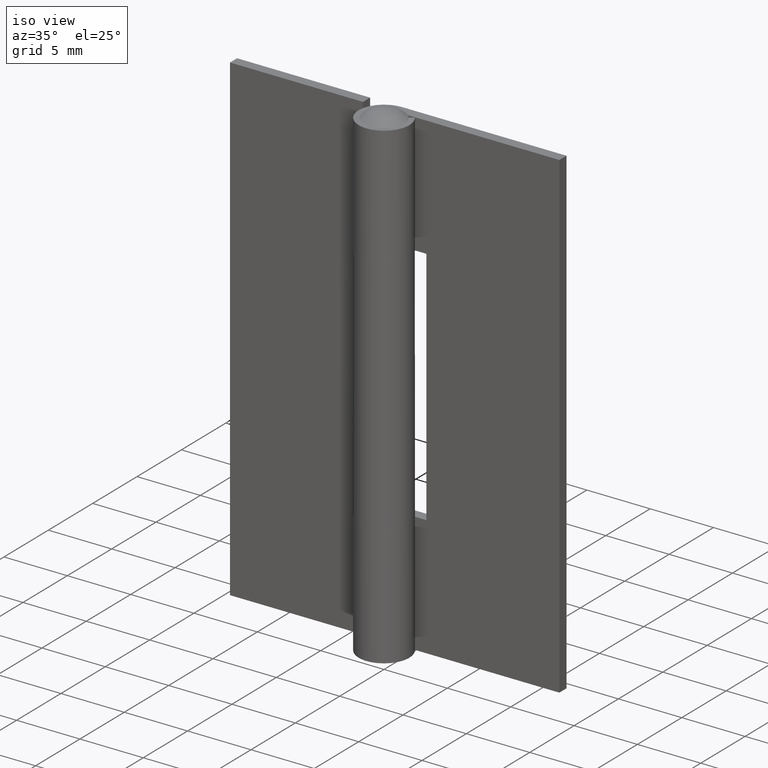
[diagram: clean part render]
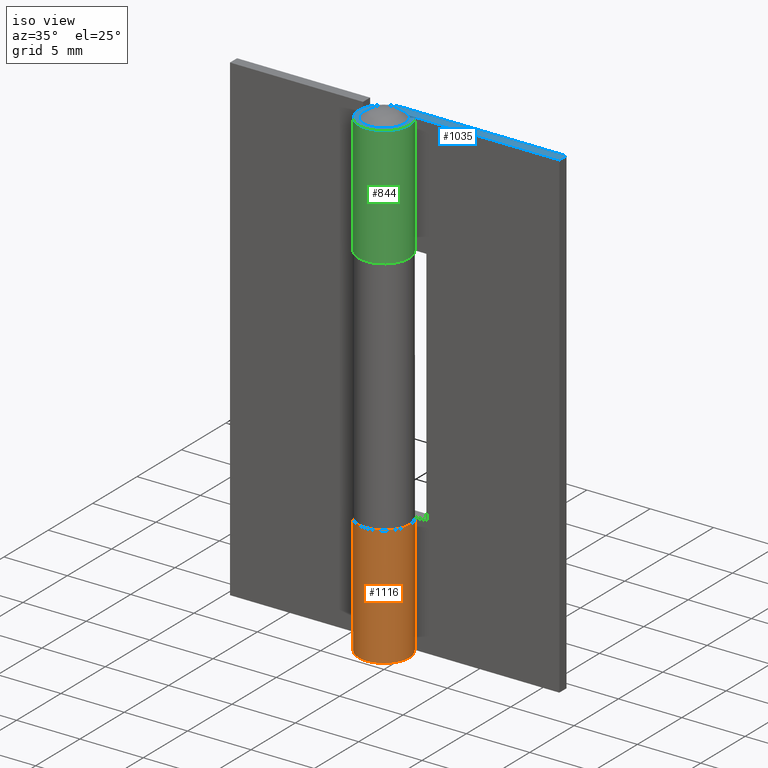
[diagram: same view with three faces highlighted in distinct colors, each labeled with its STEP entity id]
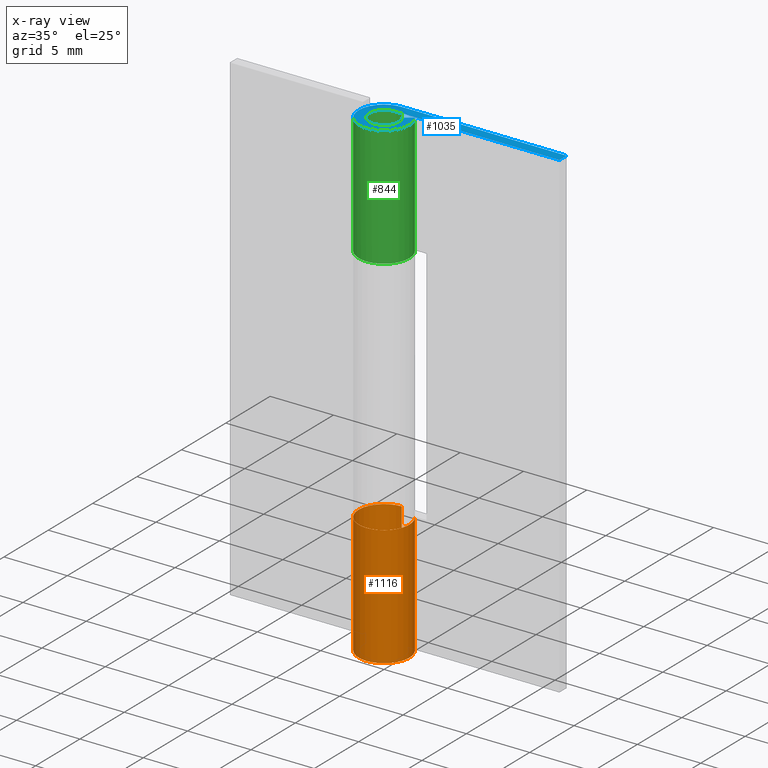
[diagram: x-ray of the same camera — body ghosted, the three highlighted faces saturated]
A machine part, iso view with three faces highlighted in distinct colors.
The next image is the same camera in x-ray (body ghosted, the three faces saturated) — at least one of them is partly hidden behind the body in this view.
Their STEP definitions:

[orange] entity #1116 — the highlighted face is a freeform B-spline surface patch.
#896=CARTESIAN_POINT('',(1.636306817195340,1.150000000000000,9.500000000000000));
#897=VERTEX_POINT('',#896);
#906=CARTESIAN_POINT('',(0.0,2.0,9.500000000000000));
#907=VERTEX_POINT('',#906);
#913=CARTESIAN_POINT('',(1.636306817195340,1.150000000000000,9.500000000000000));
#914=CARTESIAN_POINT('',(1.756008884934363,0.979872144392871,9.500000000000004));
#915=CARTESIAN_POINT('',(1.910554344957011,0.664837293065379,9.500000000000012));
#916=CARTESIAN_POINT('',(1.990858086277551,0.261453878174188,9.499999999999998));
#917=CARTESIAN_POINT('',(2.006112090058555,-0.071379126831816,9.499999999999993));
#918=CARTESIAN_POINT('',(1.975560513290086,-0.376423525887978,9.500000000000023));
#919=CARTESIAN_POINT('',(1.880727772629062,-0.703893300391789,9.499999999999984));
#920=CARTESIAN_POINT('',(1.718658741840625,-1.050211918071164,9.500000000000000));
#921=CARTESIAN_POINT('',(1.467900738620486,-1.386553338245262,9.500000000000018));
#922=CARTESIAN_POINT('',(1.156112903390003,-1.644332499113348,9.499999999999977));
#923=CARTESIAN_POINT('',(0.830428032062679,-1.830526450619629,9.500000000000030));
#924=CARTESIAN_POINT('',(0.509111246104881,-1.946993188414903,9.499999999999924));
#925=CARTESIAN_POINT('',(0.124162805834256,-2.007264356540230,9.500000000000025));
#926=CARTESIAN_POINT('',(-0.265878342988813,-1.996864701105874,9.499999999999991));
#927=CARTESIAN_POINT('',(-0.706833540189881,-1.891469862371497,9.500000000000007));
#928=CARTESIAN_POINT('',(-1.129912987630314,-1.674485815850708,9.500000000000007));
#929=CARTESIAN_POINT('',(-1.450426650189291,-1.394289448557432,9.500000000000012));
#930=CARTESIAN_POINT('',(-1.703629440127218,-1.071580900188697,9.499999999999737));
#931=CARTESIAN_POINT('',(-1.872198728112769,-0.742094150795979,9.500000000000798));
#932=CARTESIAN_POINT('',(-1.985420865322815,-0.333042069131343,9.499999999998742));
#933=CARTESIAN_POINT('',(-2.018327897334283,0.119407243509627,9.500000000001698));
#934=CARTESIAN_POINT('',(-1.935786358803601,0.566987231397522,9.499999999999227));
#935=CARTESIAN_POINT('',(-1.770874736182825,0.950493089115565,9.500000000000332));
#936=CARTESIAN_POINT('',(-1.569467497756521,1.259580264631503,9.499999999999803));
#937=CARTESIAN_POINT('',(-1.263767621649794,1.574931104122334,9.500000000000112));
#938=CARTESIAN_POINT('',(-0.920276981618766,1.791056466083651,9.499999999999966));
#939=CARTESIAN_POINT('',(-0.485294457268893,1.956749631720381,9.500000000000009));
#940=CARTESIAN_POINT('',(-0.201084941194860,2.000104808662657,9.499999999999991));
#941=CARTESIAN_POINT('',(0.0,2.0,9.500000000000000));
#942=B_SPLINE_CURVE_WITH_KNOTS('',3,(#913,#914,#915,#916,#917,#918,#919,#920,#921,#922,#923,#924,#925,#926,#927,#928,#929,#930,#931,#932,#933,#934,#935,#936,#937,#938,#939,#940,#941),.UNSPECIFIED.,.F.,.U.,(4,1,1,1,1,1,1,1,1,1,1,1,1,1,1,1,1,1,1,1,1,1,1,1,1,1,4),(0.000000210226116,0.624022316520911,1.040037869038498,1.227249017834950,1.622470047931421,1.955286493360896,2.246496028921245,2.766509364288172,3.203315907801962,3.452935980395394,3.889758910883211,4.222574795236167,4.617800433002753,5.054608475705686,5.574609134241277,6.032238876461376,6.323456095783030,6.801878988401327,7.134696426144021,7.592328976127439,8.153925732515507,8.486729500934771,8.840355528582556,9.256376392918551,9.797204703199304,10.046822779772610,10.650034254418539),.UNSPECIFIED.);
#943=EDGE_CURVE('',#897,#907,#942,.T.);
#953=CARTESIAN_POINT('',(1.636306817195340,1.150000000000000,0.0));
#954=VERTEX_POINT('',#953);
#955=CARTESIAN_POINT('',(0.0,2.0,0.0));
#956=VERTEX_POINT('',#955);
#957=CARTESIAN_POINT('',(1.636306817195340,1.150000000000000,0.0));
#958=CARTESIAN_POINT('',(1.700096495941035,1.059241438918328,0.0));
#959=CARTESIAN_POINT('',(1.837147125977620,0.825045742376349,0.0));
#960=CARTESIAN_POINT('',(1.969347598373278,0.434820267096743,0.0));
#961=CARTESIAN_POINT('',(2.017354614799587,-0.029794442713170,0.0));
#962=CARTESIAN_POINT('',(1.964749649596711,-0.445739391664837,0.0));
#963=CARTESIAN_POINT('',(1.827930053262924,-0.840160638022764,0.0));
#964=CARTESIAN_POINT('',(1.654426195223048,-1.142456440217352,0.0));
#965=CARTESIAN_POINT('',(1.408737787143811,-1.435430122834743,0.0));
#966=CARTESIAN_POINT('',(1.156118516664829,-1.644337624912891,0.0));
#967=CARTESIAN_POINT('',(0.860578764304065,-1.813264243797484,0.0));
#968=CARTESIAN_POINT('',(0.510809701036154,-1.950499982042517,0.0));
#969=CARTESIAN_POINT('',(0.096044351410973,-2.015449348466746,0.0));
#970=CARTESIAN_POINT('',(-0.327624432447050,-1.984202899455550,0.0));
#971=CARTESIAN_POINT('',(-0.704769122434179,-1.885707518997635,0.0));
#972=CARTESIAN_POINT('',(-1.106150425979081,-1.690332245882356,0.0));
#973=CARTESIAN_POINT('',(-1.433291299286645,-1.416192586484974,0.0));
#974=CARTESIAN_POINT('',(-1.660680349381688,-1.126258725225003,0.0));
#975=CARTESIAN_POINT('',(-1.845312629289105,-0.807546937824949,0.0));
#976=CARTESIAN_POINT('',(-1.980423500369255,-0.402664226961040,0.0));
#977=CARTESIAN_POINT('',(-2.012205191845825,0.035880800389804,0.0));
#978=CARTESIAN_POINT('',(-1.965580868688757,0.422540205209935,0.0));
#979=CARTESIAN_POINT('',(-1.843395425765189,0.822336552921882,0.0));
#980=CARTESIAN_POINT('',(-1.637976636656734,1.172321711304056,0.0));
#981=CARTESIAN_POINT('',(-1.377369186373906,1.461365854428041,0.0));
#982=CARTESIAN_POINT('',(-1.090813212182049,1.693723554313967,0.0));
#983=CARTESIAN_POINT('',(-0.724075926069582,1.881509124367593,0.0));
#984=CARTESIAN_POINT('',(-0.339739580224544,1.981578780576248,0.0));
#985=CARTESIAN_POINT('',(-0.104000543263394,2.000003397439669,0.0));
#986=CARTESIAN_POINT('',(0.0,2.0,0.0));
#987=B_SPLINE_CURVE_WITH_KNOTS('',3,(#957,#958,#959,#960,#961,#962,#963,#964,#965,#966,#967,#968,#969,#970,#971,#972,#973,#974,#975,#976,#977,#978,#979,#980,#981,#982,#983,#984,#985,#986),.UNSPECIFIED.,.F.,.U.,(4,1,1,1,1,1,1,1,1,1,1,1,1,1,1,1,1,1,1,1,1,1,1,1,1,1,1,4),(0.000000210226116,0.332803749775628,0.811228847014601,1.227249017834950,1.726479115180176,2.059296906811063,2.475323945904686,2.766509364288172,3.203315907801962,3.452935980395394,3.785753273664030,4.326583096262959,4.700992997388723,5.054608475705686,5.491417456150305,6.032238876461376,6.323456095783030,6.593868116038352,7.134696426144021,7.592328976127439,7.904345768201862,8.299529928883237,8.840355528582556,9.110767061978612,9.464387265330631,9.942813078190484,10.338030302680290,10.650034254418539),.UNSPECIFIED.);
#988=EDGE_CURVE('',#954,#956,#987,.T.);
#1059=CARTESIAN_POINT('',(1.636306817195340,1.150000000000000,9.500000000000000));
#1060=CARTESIAN_POINT('',(1.636306817195340,1.150000000000000,0.0));
#1061=QUASI_UNIFORM_CURVE('',1,(#1059,#1060),.UNSPECIFIED.,.F.,.U.);
#1062=EDGE_CURVE('',#897,#954,#1061,.T.);
#1073=CARTESIAN_POINT('',(0.0,2.0,9.500000000000000));
#1074=CARTESIAN_POINT('',(0.0,2.0,0.0));
#1075=QUASI_UNIFORM_CURVE('',1,(#1073,#1074),.UNSPECIFIED.,.F.,.U.);
#1076=EDGE_CURVE('',#907,#956,#1075,.T.);
#1088=CARTESIAN_POINT('',(0.083764134997604,1.998245122523257,9.737500000000003));
#1089=CARTESIAN_POINT('',(0.083764134997604,1.998245122523257,-0.243437500000001));
#1090=CARTESIAN_POINT('',(-2.473872988646710,2.105458326191331,9.737500000000003));
#1091=CARTESIAN_POINT('',(-2.473872988646710,2.105458326191331,-0.243437500000001));
#1092=CARTESIAN_POINT('',(-1.959153080758086,-0.402143265710271,9.737500000000003));
#1093=CARTESIAN_POINT('',(-1.959153080758086,-0.402143265710271,-0.243437500000001));
#1094=CARTESIAN_POINT('',(-1.444433172869462,-2.909744857611874,9.737500000000003));
#1095=CARTESIAN_POINT('',(-1.444433172869462,-2.909744857611874,-0.243437500000001));
#1096=CARTESIAN_POINT('',(0.864159919136246,-1.803670600236788,9.737500000000003));
#1097=CARTESIAN_POINT('',(0.864159919136246,-1.803670600236788,-0.243437500000001));
#1098=CARTESIAN_POINT('',(3.172753011141954,-0.697596342861702,9.737500000000003));
#1099=CARTESIAN_POINT('',(3.172753011141954,-0.697596342861702,-0.243437500000001));
#1100=CARTESIAN_POINT('',(1.541034669280693,1.274838087003549,9.737500000000003));
#1101=CARTESIAN_POINT('',(1.541034669280693,1.274838087003549,-0.243437500000001));
#1109=(BOUNDED_SURFACE()B_SPLINE_SURFACE(1,2,((#1088,#1090,#1092,#1094,#1096,#1098,#1100),(#1089,#1091,#1093,#1095,#1097,#1099,#1101)),.UNSPECIFIED.,.F.,.F.,.U.)B_SPLINE_SURFACE_WITH_KNOTS((2,2),(3,2,2,3),(0.0,9.980937500000003),(0.0,3.901860708526890,7.803721417053779,11.705582125580669),.UNSPECIFIED.)GEOMETRIC_REPRESENTATION_ITEM()RATIONAL_B_SPLINE_SURFACE(((1.0,0.615661475325658,1.0,0.615661475325658,1.0,0.615661475325658,1.0),(1.0,0.615661475325658,1.0,0.615661475325658,1.0,0.615661475325658,1.0)))REPRESENTATION_ITEM('')SURFACE());
#1110=ORIENTED_EDGE('',*,*,#1062,.F.);
#1111=ORIENTED_EDGE('',*,*,#943,.T.);
#1112=ORIENTED_EDGE('',*,*,#1076,.T.);
#1113=ORIENTED_EDGE('',*,*,#988,.F.);
#1114=EDGE_LOOP('',(#1110,#1111,#1112,#1113));
#1115=FACE_OUTER_BOUND('',#1114,.T.);
#1116=ADVANCED_FACE('',(#1115),#1109,.T.);

[blue] entity #1035 — the highlighted face is a freeform B-spline surface patch.
#468=CARTESIAN_POINT('',(1.636306817195340,1.150000000000000,38.0));
#469=VERTEX_POINT('',#468);
#484=CARTESIAN_POINT('',(0.981784090317198,0.690000000000000,38.0));
#485=VERTEX_POINT('',#484);
#491=CARTESIAN_POINT('',(0.981784090317198,0.690000000000000,38.0));
#492=CARTESIAN_POINT('',(1.636306817195340,1.150000000000000,38.0));
#493=QUASI_UNIFORM_CURVE('',1,(#491,#492),.UNSPECIFIED.,.F.,.U.);
#494=EDGE_CURVE('',#485,#469,#493,.T.);
#552=CARTESIAN_POINT('',(0.0,1.200000000000000,38.0));
#553=VERTEX_POINT('',#552);
#559=CARTESIAN_POINT('',(0.981784090317198,0.690000000000000,38.0));
#560=CARTESIAN_POINT('',(1.044004668965502,0.601525661380462,37.999999999999957));
#561=CARTESIAN_POINT('',(1.124961775016335,0.444895001007890,38.000000000000028));
#562=CARTESIAN_POINT('',(1.201991416209261,0.154345411296749,37.999999999999979));
#563=CARTESIAN_POINT('',(1.207661619393586,-0.131940006800351,37.999999999999979));
#564=CARTESIAN_POINT('',(1.136973817264248,-0.407795825027988,38.000000000000092));
#565=CARTESIAN_POINT('',(1.028429475397342,-0.633527098972543,37.999999999999837));
#566=CARTESIAN_POINT('',(0.892342140941245,-0.814097645726894,38.000000000000327));
#567=CARTESIAN_POINT('',(0.705251181588300,-0.980630690494813,37.999999999999872));
#568=CARTESIAN_POINT('',(0.495675667026628,-1.103371146909065,38.000000000000163));
#569=CARTESIAN_POINT('',(0.264727442050229,-1.177670466823438,37.999999999999730));
#570=CARTESIAN_POINT('',(0.049318442047427,-1.204542912962269,38.000000000000107));
#571=CARTESIAN_POINT('',(-0.150887136314372,-1.196069223048900,37.999999999999929));
#572=CARTESIAN_POINT('',(-0.387765232191711,-1.145932067541939,37.999999999999673));
#573=CARTESIAN_POINT('',(-0.609384222833013,-1.045080192148450,38.000000000000092));
#574=CARTESIAN_POINT('',(-0.809441255564708,-0.894366842569921,37.999999999999787));
#575=CARTESIAN_POINT('',(-0.963007372232430,-0.729049816636842,38.000000000000213));
#576=CARTESIAN_POINT('',(-1.076852349377966,-0.543718305465461,37.999999999999950));
#577=CARTESIAN_POINT('',(-1.156108329586717,-0.341807562556870,37.999999999999851));
#578=CARTESIAN_POINT('',(-1.202646412347747,-0.121018042414520,38.000000000000902));
#579=CARTESIAN_POINT('',(-1.202554240715058,0.146970963478039,37.999999999997193));
#580=CARTESIAN_POINT('',(-1.126999723373620,0.456531706941307,38.000000000001918));
#581=CARTESIAN_POINT('',(-0.972073553412274,0.726886922619305,37.999999999999233));
#582=CARTESIAN_POINT('',(-0.771917338309359,0.928988337147602,38.000000000000142));
#583=CARTESIAN_POINT('',(-0.591709454337305,1.050377565527797,37.999999999999993));
#584=CARTESIAN_POINT('',(-0.341066410141187,1.164271033140950,38.000000000000007));
#585=CARTESIAN_POINT('',(-0.141463498319693,1.200119165661440,37.999999999999993));
#586=CARTESIAN_POINT('',(0.0,1.200000000000000,38.0));
#587=B_SPLINE_CURVE_WITH_KNOTS('',3,(#559,#560,#561,#562,#563,#564,#565,#566,#567,#568,#569,#570,#571,#572,#573,#574,#575,#576,#577,#578,#579,#580,#581,#582,#583,#584,#585,#586),.UNSPECIFIED.,.F.,.U.,(4,1,1,1,1,1,1,1,1,1,1,1,1,1,1,1,1,1,1,1,1,1,1,1,1,4),(0.000000070797832,0.324481364322542,0.524179711868340,0.898613473269622,1.173194369905333,1.372894546844476,1.647442294649126,1.847125509221566,2.121715068530386,2.371329192011988,2.571024547467418,2.770712707497325,2.970418905698261,3.294888434370189,3.494576259775921,3.719233360261750,3.968855645177936,4.143589663457602,4.368246197011444,4.642828387180725,4.942332661589371,5.316759770918440,5.566382055741372,5.791034932759215,5.965772607209484,6.390106934469373),.UNSPECIFIED.);
#588=EDGE_CURVE('',#485,#553,#587,.T.);
#724=CARTESIAN_POINT('',(13.0,1.200001000000014,38.0));
#725=VERTEX_POINT('',#724);
#731=CARTESIAN_POINT('',(13.0,1.200001000000014,38.0));
#732=CARTESIAN_POINT('',(0.0,1.200000000000000,38.0));
#733=QUASI_UNIFORM_CURVE('',1,(#731,#732),.UNSPECIFIED.,.F.,.U.);
#734=EDGE_CURVE('',#725,#553,#733,.T.);
#767=CARTESIAN_POINT('',(0.0,2.0,38.0));
#768=VERTEX_POINT('',#767);
#810=CARTESIAN_POINT('',(1.636306817195340,1.150000000000000,38.0));
#811=CARTESIAN_POINT('',(1.716056840392011,1.036560598322733,38.0));
#812=CARTESIAN_POINT('',(1.831434125490863,0.829529974258678,38.000000000000092));
#813=CARTESIAN_POINT('',(1.969636024041384,0.428594537183174,37.999999999999950));
#814=CARTESIAN_POINT('',(2.017680377468229,0.025334451391165,37.999999999999922));
#815=CARTESIAN_POINT('',(1.967863383221916,-0.424389447097773,37.999999999999957));
#816=CARTESIAN_POINT('',(1.847407849438768,-0.803279214550075,38.000000000000007));
#817=CARTESIAN_POINT('',(1.644631588221875,-1.160859522766591,38.000000000000092));
#818=CARTESIAN_POINT('',(1.371054360176753,-1.476960789600504,37.999999999999460));
#819=CARTESIAN_POINT('',(1.052969671425823,-1.715844916740484,38.000000000001513));
#820=CARTESIAN_POINT('',(0.714076366392323,-1.878078096976476,37.999999999997179));
#821=CARTESIAN_POINT('',(0.353007214872395,-1.981979213068820,38.000000000001293));
#822=CARTESIAN_POINT('',(-0.022579511039090,-2.013046924277804,37.999999999999631));
#823=CARTESIAN_POINT('',(-0.444204756462006,-1.964302937254552,38.000000000000092));
#824=CARTESIAN_POINT('',(-0.828929941168044,-1.837716812372567,38.000000000000121));
#825=CARTESIAN_POINT('',(-1.236222889740699,-1.595637298010944,37.999999999999183));
#826=CARTESIAN_POINT('',(-1.562628831784600,-1.278943515649125,38.000000000002373));
#827=CARTESIAN_POINT('',(-1.803795207174576,-0.895305272440531,37.999999999995318));
#828=CARTESIAN_POINT('',(-1.933340710347278,-0.549495796170242,38.000000000005812));
#829=CARTESIAN_POINT('',(-2.004392057668502,-0.173782292701816,37.999999999998359));
#830=CARTESIAN_POINT('',(-2.004274875628608,0.168174462554007,38.000000000000597));
#831=CARTESIAN_POINT('',(-1.931181728147948,0.564561683505968,38.000000000000632));
#832=CARTESIAN_POINT('',(-1.787433817507581,0.935730627422654,37.999999999999822));
#833=CARTESIAN_POINT('',(-1.512399451395502,1.339175769092397,37.999999999999979));
#834=CARTESIAN_POINT('',(-1.183354131407262,1.632516804872506,38.000000000000021));
#835=CARTESIAN_POINT('',(-0.855325757374767,1.815743697879805,37.999999999999993));
#836=CARTESIAN_POINT('',(-0.485296150903669,1.956752297403114,38.000000000000050));
#837=CARTESIAN_POINT('',(-0.201086066667683,2.000106961801835,37.999999999999993));
#838=CARTESIAN_POINT('',(0.0,2.0,38.0));
#839=B_SPLINE_CURVE_WITH_KNOTS('',3,(#810,#811,#812,#813,#814,#815,#816,#817,#818,#819,#820,#821,#822,#823,#824,#825,#826,#827,#828,#829,#830,#831,#832,#833,#834,#835,#836,#837,#838),.UNSPECIFIED.,.F.,.U.,(4,1,1,1,1,1,1,1,1,1,1,1,1,1,1,1,1,1,1,1,1,1,1,1,1,1,4),(0.000000210226114,0.415998202734064,0.707217848917788,1.268851320092519,1.622470047931421,2.059296906811062,2.454509818019345,2.849694740728886,3.307326115060344,3.640144730540145,3.972962787602241,4.430590943353109,4.763407380662631,5.241837242629075,5.637021651609744,6.177847251527309,6.593868116038352,6.989087581993664,7.280304801097817,7.737934543407389,8.008304321780635,8.486729500934771,8.923555663740613,9.464387265330631,9.797204703199304,10.046822779772610,10.650034254418539),.UNSPECIFIED.);
#840=EDGE_CURVE('',#469,#768,#839,.T.);
#1012=CARTESIAN_POINT('',(-2.749228759156944,-2.199795509127606,38.0));
#1013=CARTESIAN_POINT('',(13.749249364118381,-2.199795509127606,38.0));
#1014=CARTESIAN_POINT('',(-2.749228759156944,2.199799886185819,38.0));
#1015=CARTESIAN_POINT('',(13.749249364118381,2.199799886185819,38.0));
#1016=B_SPLINE_SURFACE_WITH_KNOTS('',1,1,((#1012,#1014),(#1013,#1015)),.UNSPECIFIED.,.F.,.F.,.U.,(2,2),(2,2),(0.0,16.498478123275319),(0.0,4.399595395313424),.UNSPECIFIED.);
#1017=ORIENTED_EDGE('',*,*,#840,.F.);
#1018=ORIENTED_EDGE('',*,*,#494,.F.);
#1019=ORIENTED_EDGE('',*,*,#588,.T.);
#1020=ORIENTED_EDGE('',*,*,#734,.F.);
#1021=CARTESIAN_POINT('',(13.0,2.0,38.0));
#1022=VERTEX_POINT('',#1021);
#1023=CARTESIAN_POINT('',(13.0,2.0,38.0));
#1024=CARTESIAN_POINT('',(13.0,1.200001000000014,38.0));
#1025=QUASI_UNIFORM_CURVE('',1,(#1023,#1024),.UNSPECIFIED.,.F.,.U.);
#1026=EDGE_CURVE('',#1022,#725,#1025,.T.);
#1027=ORIENTED_EDGE('',*,*,#1026,.F.);
#1028=CARTESIAN_POINT('',(0.0,2.0,38.0));
#1029=CARTESIAN_POINT('',(13.0,2.0,38.0));
#1030=QUASI_UNIFORM_CURVE('',1,(#1028,#1029),.UNSPECIFIED.,.F.,.U.);
#1031=EDGE_CURVE('',#768,#1022,#1030,.T.);
#1032=ORIENTED_EDGE('',*,*,#1031,.F.);
#1033=EDGE_LOOP('',(#1017,#1018,#1019,#1020,#1027,#1032));
#1034=FACE_OUTER_BOUND('',#1033,.T.);
#1035=ADVANCED_FACE('',(#1034),#1016,.T.);

[green] entity #844 — the highlighted face is a freeform B-spline surface patch.
#468=CARTESIAN_POINT('',(1.636306817195340,1.150000000000000,38.0));
#469=VERTEX_POINT('',#468);
#470=CARTESIAN_POINT('',(1.636306817195340,1.150000000000000,28.500000000000000));
#471=VERTEX_POINT('',#470);
#472=CARTESIAN_POINT('',(1.636306817195340,1.150000000000000,38.0));
#473=CARTESIAN_POINT('',(1.636306817195340,1.150000000000000,28.500000000000000));
#474=QUASI_UNIFORM_CURVE('',1,(#472,#473),.UNSPECIFIED.,.F.,.U.);
#475=EDGE_CURVE('',#469,#471,#474,.T.);
#745=CARTESIAN_POINT('',(0.017453070996746,1.999923846128314,38.237499999999997));
#746=CARTESIAN_POINT('',(0.017453070996746,1.999923846128314,28.256562499999990));
#747=CARTESIAN_POINT('',(-2.496795788303258,2.021865363516489,38.237500000000004));
#748=CARTESIAN_POINT('',(-2.496795788303258,2.021865363516489,28.256562500000001));
#749=CARTESIAN_POINT('',(-1.952592014239866,-0.432879227876235,38.237499999999997));
#750=CARTESIAN_POINT('',(-1.952592014239866,-0.432879227876235,28.256562499999990));
#751=CARTESIAN_POINT('',(-1.408388240176473,-2.887623819268958,38.237500000000004));
#752=CARTESIAN_POINT('',(-1.408388240176473,-2.887623819268958,28.256562500000001));
#753=CARTESIAN_POINT('',(0.861022193616590,-1.805170568699748,38.237499999999997));
#754=CARTESIAN_POINT('',(0.861022193616590,-1.805170568699748,28.256562499999990));
#755=CARTESIAN_POINT('',(3.130432627409653,-0.722717318130538,38.237500000000004));
#756=CARTESIAN_POINT('',(3.130432627409653,-0.722717318130538,28.256562500000001));
#757=CARTESIAN_POINT('',(1.565216313704827,1.245029273275210,38.237499999999997));
#758=CARTESIAN_POINT('',(1.565216313704827,1.245029273275210,28.256562499999990));
#766=(BOUNDED_SURFACE()B_SPLINE_SURFACE(1,2,((#745,#747,#749,#751,#753,#755,#757),(#746,#748,#750,#752,#754,#756,#758)),.UNSPECIFIED.,.F.,.F.,.U.)B_SPLINE_SURFACE_WITH_KNOTS((2,2),(3,2,2,3),(0.0,9.980937500000010),(0.0,3.858741926540562,7.717483853081124,11.576225779621691),.UNSPECIFIED.)GEOMETRIC_REPRESENTATION_ITEM()RATIONAL_B_SPLINE_SURFACE(((1.0,0.622514636637620,1.0,0.622514636637620,1.0,0.622514636637620,1.0),(1.0,0.622514636637620,1.0,0.622514636637620,1.0,0.622514636637620,1.0)))REPRESENTATION_ITEM('')SURFACE());
#767=CARTESIAN_POINT('',(0.0,2.0,38.0));
#768=VERTEX_POINT('',#767);
#769=CARTESIAN_POINT('',(0.0,2.0,28.500000000000000));
#770=VERTEX_POINT('',#769);
#771=CARTESIAN_POINT('',(0.0,2.0,38.0));
#772=CARTESIAN_POINT('',(0.0,2.0,28.500000000000000));
#773=QUASI_UNIFORM_CURVE('',1,(#771,#772),.UNSPECIFIED.,.F.,.U.);
#774=EDGE_CURVE('',#768,#770,#773,.T.);
#775=ORIENTED_EDGE('',*,*,#774,.T.);
#776=CARTESIAN_POINT('',(0.0,2.0,28.500000000000000));
#777=CARTESIAN_POINT('',(-0.110933658729646,2.000006274438027,28.500000000000021));
#778=CARTESIAN_POINT('',(-0.360541378158908,1.979192476253945,28.499999999999961));
#779=CARTESIAN_POINT('',(-0.696427260289628,1.886089953460193,28.499999999999979));
#780=CARTESIAN_POINT('',(-1.028652226108026,1.726739436536892,28.499999999999940));
#781=CARTESIAN_POINT('',(-1.335148685973381,1.508504113229255,28.499999999999950));
#782=CARTESIAN_POINT('',(-1.585484818352126,1.236486543201834,28.500000000000011));
#783=CARTESIAN_POINT('',(-1.798310540984809,0.902383582451446,28.500000000000011));
#784=CARTESIAN_POINT('',(-1.945941300885075,0.532740328213716,28.499999999999979));
#785=CARTESIAN_POINT('',(-2.012091440625781,0.098318087361424,28.500000000000011));
#786=CARTESIAN_POINT('',(-1.989899899108703,-0.291223175069980,28.500000000000000));
#787=CARTESIAN_POINT('',(-1.897724221386617,-0.669801193685860,28.500000000000028));
#788=CARTESIAN_POINT('',(-1.749016387793141,-0.992951580945404,28.499999999999961));
#789=CARTESIAN_POINT('',(-1.520937416004545,-1.317013145698199,28.500000000000021));
#790=CARTESIAN_POINT('',(-1.235451271198049,-1.594028847765174,28.499999999999979));
#791=CARTESIAN_POINT('',(-0.860071607138657,-1.822466577737805,28.500000000000039));
#792=CARTESIAN_POINT('',(-0.478024392078350,-1.954800304070979,28.499999999999861));
#793=CARTESIAN_POINT('',(-0.043840614699046,-2.016516715493179,28.500000000000671));
#794=CARTESIAN_POINT('',(0.367577244940271,-1.982479642860425,28.499999999999339));
#795=CARTESIAN_POINT('',(0.819465654248885,-1.842226236865024,28.499999999997570));
#796=CARTESIAN_POINT('',(1.183929399247830,-1.633875240757125,28.500000000006779));
#797=CARTESIAN_POINT('',(1.510574251448493,-1.330637139764887,28.499999999995620));
#798=CARTESIAN_POINT('',(1.771665221701354,-0.968858924711344,28.500000000002629));
#799=CARTESIAN_POINT('',(1.934935184844495,-0.566951167846926,28.499999999999041));
#800=CARTESIAN_POINT('',(2.000961938083184,-0.175879689623705,28.500000000000188));
#801=CARTESIAN_POINT('',(2.002910574091912,0.137078513330710,28.500000000000000));
#802=CARTESIAN_POINT('',(1.952846949469904,0.481064230149280,28.500000000000011));
#803=CARTESIAN_POINT('',(1.836480707474214,0.824584102278961,28.500000000000011));
#804=CARTESIAN_POINT('',(1.704085112292873,1.053572693522619,28.499999999999989));
#805=CARTESIAN_POINT('',(1.636306817195340,1.150000000000000,28.500000000000000));
#806=B_SPLINE_CURVE_WITH_KNOTS('',3,(#776,#777,#778,#779,#780,#781,#782,#783,#784,#785,#786,#787,#788,#789,#790,#791,#792,#793,#794,#795,#796,#797,#798,#799,#800,#801,#802,#803,#804,#805),.UNSPECIFIED.,.F.,.U.,(4,1,1,1,1,1,1,1,1,1,1,1,1,1,1,1,1,1,1,1,1,1,1,1,1,1,1,4),(0.000000210221957,0.332803749771809,0.748818999055260,1.040037869035336,1.435260537318609,1.872088553135427,2.142491704326261,2.620924987517917,3.057708335083348,3.452935980393929,3.785753273662722,4.222574795235071,4.513791272364731,4.971421658205385,5.408197909925131,5.824221223983320,6.177847251526885,6.718675562157936,7.051496291263152,7.592328976127225,7.966747633639102,8.382722978938244,8.923555663740480,9.256376392918432,9.568395069456908,9.859613808641306,10.296436605244830,10.650034254418550),.UNSPECIFIED.);
#807=EDGE_CURVE('',#770,#471,#806,.T.);
#808=ORIENTED_EDGE('',*,*,#807,.T.);
#809=ORIENTED_EDGE('',*,*,#475,.F.);
#810=CARTESIAN_POINT('',(1.636306817195340,1.150000000000000,38.0));
#811=CARTESIAN_POINT('',(1.716056840392011,1.036560598322733,38.0));
#812=CARTESIAN_POINT('',(1.831434125490863,0.829529974258678,38.000000000000092));
#813=CARTESIAN_POINT('',(1.969636024041384,0.428594537183174,37.999999999999950));
#814=CARTESIAN_POINT('',(2.017680377468229,0.025334451391165,37.999999999999922));
#815=CARTESIAN_POINT('',(1.967863383221916,-0.424389447097773,37.999999999999957));
#816=CARTESIAN_POINT('',(1.847407849438768,-0.803279214550075,38.000000000000007));
#817=CARTESIAN_POINT('',(1.644631588221875,-1.160859522766591,38.000000000000092));
#818=CARTESIAN_POINT('',(1.371054360176753,-1.476960789600504,37.999999999999460));
#819=CARTESIAN_POINT('',(1.052969671425823,-1.715844916740484,38.000000000001513));
#820=CARTESIAN_POINT('',(0.714076366392323,-1.878078096976476,37.999999999997179));
#821=CARTESIAN_POINT('',(0.353007214872395,-1.981979213068820,38.000000000001293));
#822=CARTESIAN_POINT('',(-0.022579511039090,-2.013046924277804,37.999999999999631));
#823=CARTESIAN_POINT('',(-0.444204756462006,-1.964302937254552,38.000000000000092));
#824=CARTESIAN_POINT('',(-0.828929941168044,-1.837716812372567,38.000000000000121));
#825=CARTESIAN_POINT('',(-1.236222889740699,-1.595637298010944,37.999999999999183));
#826=CARTESIAN_POINT('',(-1.562628831784600,-1.278943515649125,38.000000000002373));
#827=CARTESIAN_POINT('',(-1.803795207174576,-0.895305272440531,37.999999999995318));
#828=CARTESIAN_POINT('',(-1.933340710347278,-0.549495796170242,38.000000000005812));
#829=CARTESIAN_POINT('',(-2.004392057668502,-0.173782292701816,37.999999999998359));
#830=CARTESIAN_POINT('',(-2.004274875628608,0.168174462554007,38.000000000000597));
#831=CARTESIAN_POINT('',(-1.931181728147948,0.564561683505968,38.000000000000632));
#832=CARTESIAN_POINT('',(-1.787433817507581,0.935730627422654,37.999999999999822));
#833=CARTESIAN_POINT('',(-1.512399451395502,1.339175769092397,37.999999999999979));
#834=CARTESIAN_POINT('',(-1.183354131407262,1.632516804872506,38.000000000000021));
#835=CARTESIAN_POINT('',(-0.855325757374767,1.815743697879805,37.999999999999993));
#836=CARTESIAN_POINT('',(-0.485296150903669,1.956752297403114,38.000000000000050));
#837=CARTESIAN_POINT('',(-0.201086066667683,2.000106961801835,37.999999999999993));
#838=CARTESIAN_POINT('',(0.0,2.0,38.0));
#839=B_SPLINE_CURVE_WITH_KNOTS('',3,(#810,#811,#812,#813,#814,#815,#816,#817,#818,#819,#820,#821,#822,#823,#824,#825,#826,#827,#828,#829,#830,#831,#832,#833,#834,#835,#836,#837,#838),.UNSPECIFIED.,.F.,.U.,(4,1,1,1,1,1,1,1,1,1,1,1,1,1,1,1,1,1,1,1,1,1,1,1,1,1,4),(0.000000210226114,0.415998202734064,0.707217848917788,1.268851320092519,1.622470047931421,2.059296906811062,2.454509818019345,2.849694740728886,3.307326115060344,3.640144730540145,3.972962787602241,4.430590943353109,4.763407380662631,5.241837242629075,5.637021651609744,6.177847251527309,6.593868116038352,6.989087581993664,7.280304801097817,7.737934543407389,8.008304321780635,8.486729500934771,8.923555663740613,9.464387265330631,9.797204703199304,10.046822779772610,10.650034254418539),.UNSPECIFIED.);
#840=EDGE_CURVE('',#469,#768,#839,.T.);
#841=ORIENTED_EDGE('',*,*,#840,.T.);
#842=EDGE_LOOP('',(#775,#808,#809,#841));
#843=FACE_OUTER_BOUND('',#842,.T.);
#844=ADVANCED_FACE('',(#843),#766,.T.);